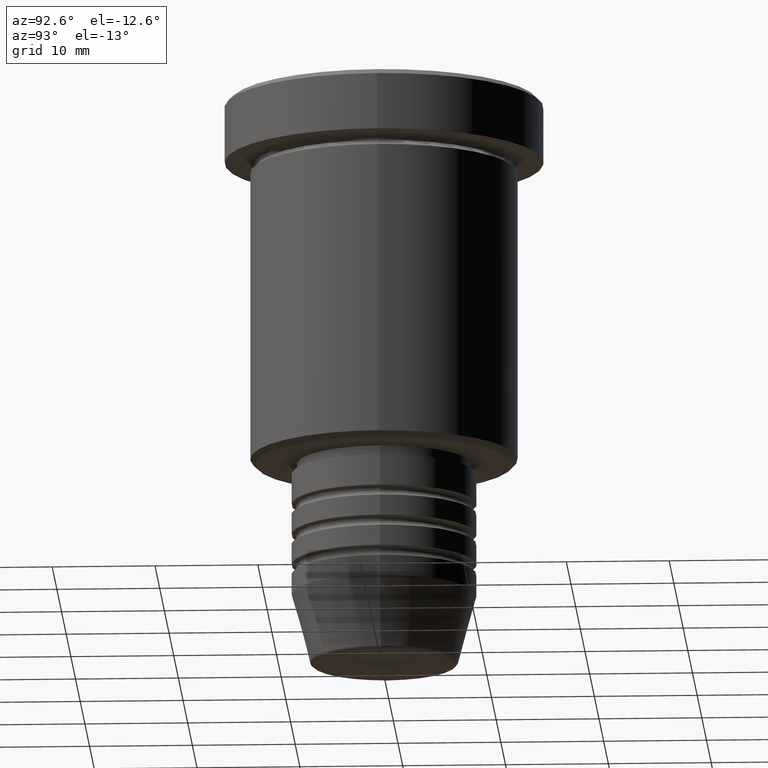
[diagram: clean part render]
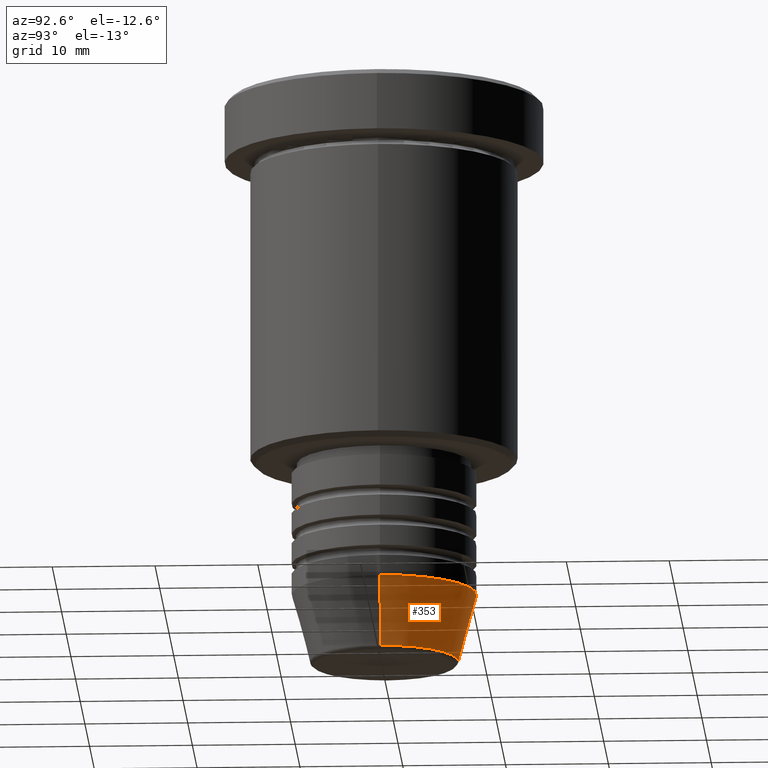
[diagram: same view with one face highlighted and labeled with its STEP entity id]
A machine part, auxiliary view. The second image highlights one B-rep face of the part: STEP entity #353.
In plain terms, the highlighted conical surface has half-angle 15 deg.
Its self-contained STEP definition (entity closure, byte-faithful):
#8 = CARTESIAN_POINT ( 'NONE',  ( 7.223655072137190380, 0.000000000000000000, -55.62940952255125637 ) ) ;
#47 = VERTEX_POINT ( 'NONE', #8 ) ;
#80 = CARTESIAN_POINT ( 'NONE',  ( -9.000000000000000000, 1.102182119232617714E-15, -48.99999999999999289 ) ) ;
#92 = DIRECTION ( 'NONE',  ( -0.000000000000000000, -0.000000000000000000, 1.000000000000000000 ) ) ;
#95 = ORIENTED_EDGE ( 'NONE', *, *, #528, .F. ) ;
#176 = CARTESIAN_POINT ( 'NONE',  ( 0.000000000000000000, 0.000000000000000000, -48.99999999999999289 ) ) ;
#184 = EDGE_CURVE ( 'NONE', #47, #678, #495, .T. ) ;
#253 = CIRCLE ( 'NONE', #603, 9.000000000000000000 ) ;
#260 = LINE ( 'NONE', #80, #537 ) ;
#296 = CARTESIAN_POINT ( 'NONE',  ( -7.223655072137191269, 9.934123627281767082E-16, -55.62940952255125637 ) ) ;
#335 = CARTESIAN_POINT ( 'NONE',  ( 9.000000000000000000, 0.000000000000000000, -48.99999999999999289 ) ) ;
#353 = ADVANCED_FACE ( 'NONE', ( #989 ), #753, .T. ) ;
#369 = DIRECTION ( 'NONE',  ( -0.000000000000000000, -0.000000000000000000, 1.000000000000000000 ) ) ;
#381 = AXIS2_PLACEMENT_3D ( 'NONE', #1146, #1055, #956 ) ;
#414 = ORIENTED_EDGE ( 'NONE', *, *, #974, .T. ) ;
#449 = EDGE_CURVE ( 'NONE', #525, #691, #253, .T. ) ;
#495 = CIRCLE ( 'NONE', #381, 7.223655072137190380 ) ;
#516 = CARTESIAN_POINT ( 'NONE',  ( 9.000000000000000000, 0.000000000000000000, -48.99999999999999289 ) ) ;
#524 = LINE ( 'NONE', #335, #908 ) ;
#525 = VERTEX_POINT ( 'NONE', #516 ) ;
#528 = EDGE_CURVE ( 'NONE', #47, #525, #524, .T. ) ;
#536 = AXIS2_PLACEMENT_3D ( 'NONE', #1164, #92, #542 ) ;
#537 = VECTOR ( 'NONE', #1167, 1000.000000000000000 ) ;
#542 = DIRECTION ( 'NONE',  ( 1.000000000000000000, 0.000000000000000000, 0.000000000000000000 ) ) ;
#589 = DIRECTION ( 'NONE',  ( 0.2588190451025213501, 0.000000000000000000, 0.9659258262890680902 ) ) ;
#603 = AXIS2_PLACEMENT_3D ( 'NONE', #176, #369, #805 ) ;
#678 = VERTEX_POINT ( 'NONE', #296 ) ;
#691 = VERTEX_POINT ( 'NONE', #826 ) ;
#753 = CONICAL_SURFACE ( 'NONE', #536, 9.000000000000000000, 0.2617993877991500740 ) ;
#805 = DIRECTION ( 'NONE',  ( 1.000000000000000000, 0.000000000000000000, 0.000000000000000000 ) ) ;
#826 = CARTESIAN_POINT ( 'NONE',  ( -9.000000000000000000, 1.102182119232617714E-15, -48.99999999999999289 ) ) ;
#908 = VECTOR ( 'NONE', #589, 1000.000000000000000 ) ;
#912 = EDGE_LOOP ( 'NONE', ( #959, #414, #1013, #95 ) ) ;
#956 = DIRECTION ( 'NONE',  ( 1.000000000000000000, 0.000000000000000000, 0.000000000000000000 ) ) ;
#959 = ORIENTED_EDGE ( 'NONE', *, *, #184, .T. ) ;
#974 = EDGE_CURVE ( 'NONE', #678, #691, #260, .T. ) ;
#989 = FACE_OUTER_BOUND ( 'NONE', #912, .T. ) ;
#1013 = ORIENTED_EDGE ( 'NONE', *, *, #449, .F. ) ;
#1055 = DIRECTION ( 'NONE',  ( -0.000000000000000000, -0.000000000000000000, 1.000000000000000000 ) ) ;
#1146 = CARTESIAN_POINT ( 'NONE',  ( 0.000000000000000000, 0.000000000000000000, -55.62940952255125637 ) ) ;
#1164 = CARTESIAN_POINT ( 'NONE',  ( 0.000000000000000000, 0.000000000000000000, -48.99999999999999289 ) ) ;
#1167 = DIRECTION ( 'NONE',  ( -0.2588190451025213501, 3.169619151431772337E-17, 0.9659258262890680902 ) ) ;